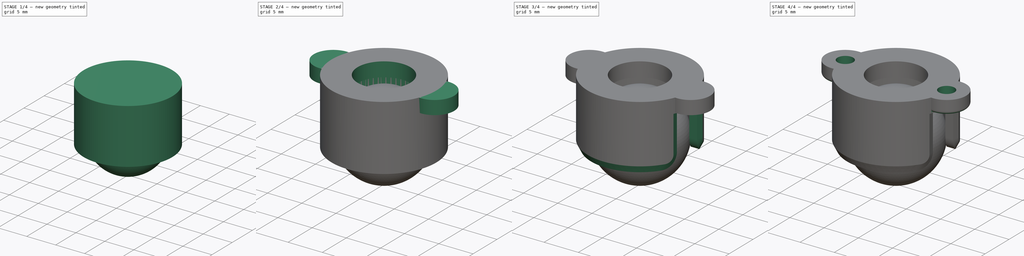
[diagram: build sequence overview — one tinted view per stage of 4, left to right]
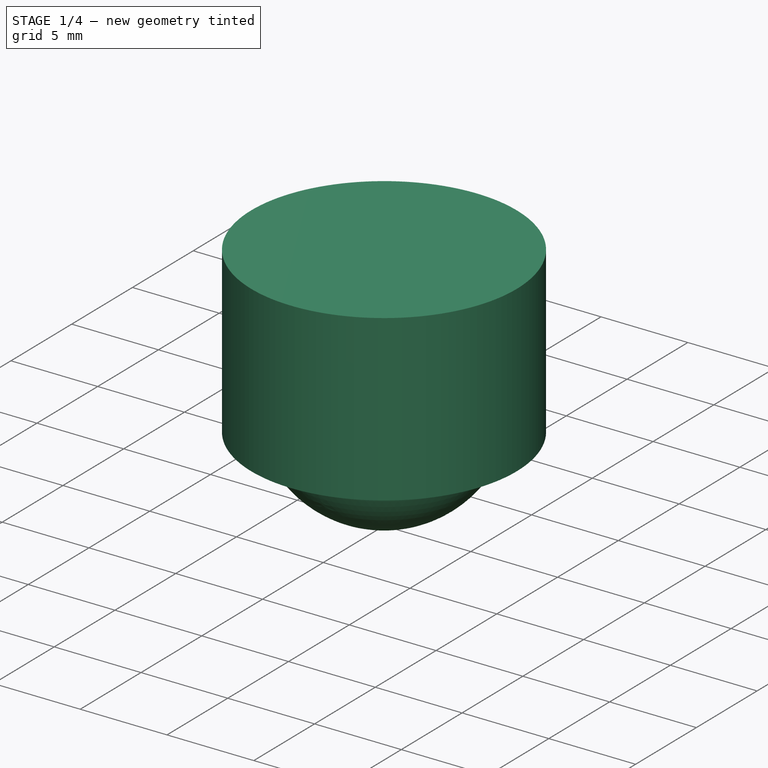
[diagram: stage 1 of 4 — iso view after this stage's code; geometry added in this stage tinted green]
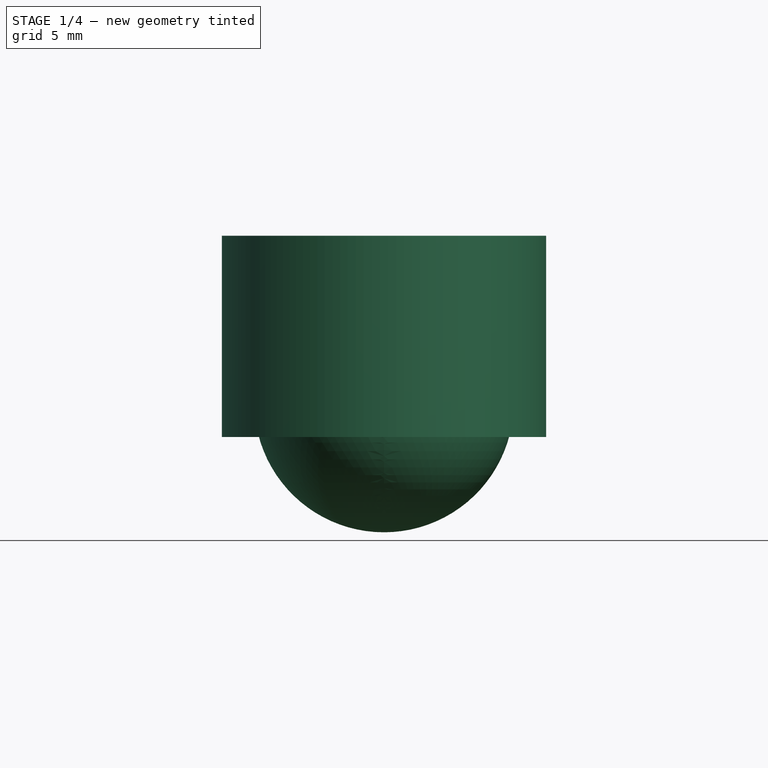
[diagram: stage 1 of 4 — front view after this stage's code; geometry added in this stage tinted green]
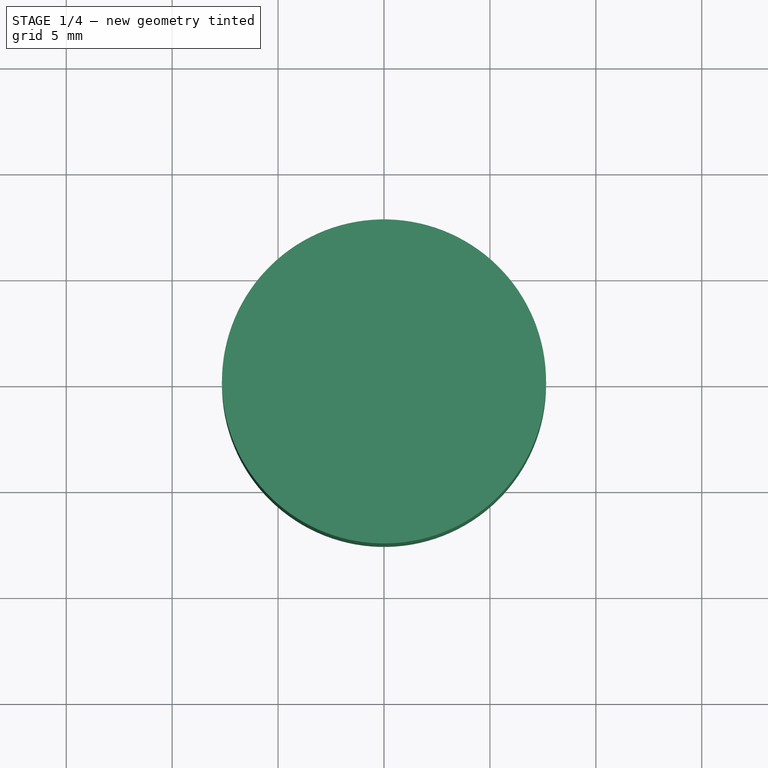
[diagram: stage 1 of 4 — top view after this stage's code; geometry added in this stage tinted green]
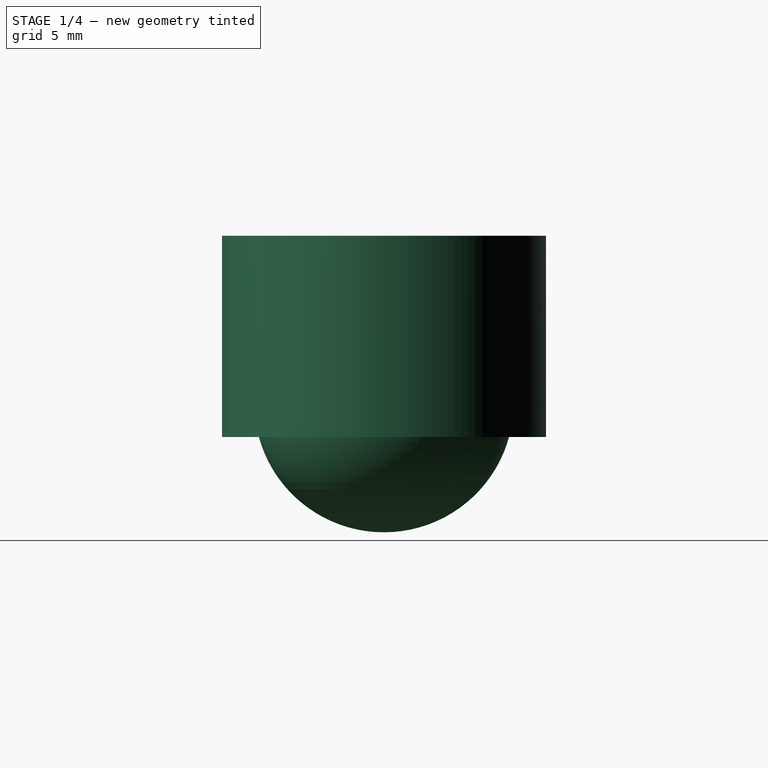
[diagram: stage 1 of 4 — right view after this stage's code; geometry added in this stage tinted green]
FCSTD DOCUMENT  (FreeCAD 0.19R24276 (Git))
Label: Std_PBallCasterV2
License: All rights reserved
LicenseURL: http://en.wikipedia.org/wiki/All_rights_reserved
objects: Sketcher::SketchObject×7, PartDesign::Pocket×4, PartDesign::Pad×2, PartDesign::Fillet×2, PartDesign::Body×2, PartDesign::Chamfer×1, PartDesign::Revolution×1, App::Part×1
note: 29 computed .brp shape members not serialized (recipe doc carries the construction recipe); baked Part::Feature solids carry a one-line shape summary decoded from their .brp

FEATURE [Sketcher::SketchObject] Sketch
  FullyConstrained = true
  MapMode = 5
  Support = -> [XY_Plane001]
  sketch-geometry (1):
    g0: Circle CenterX=0 CenterY=0 CenterZ=0 NormalX=0 NormalY=0 NormalZ=1 AngleXU=0 Radius=7.65
  constraints (2):
    c: Coincident(g0,g-1)
    c: Diameter(g0) = 15.3
FEATURE [PartDesign::Pad] Pad
  Direction = (1,1,1)
  Length = 9.5
  Length2 = 100
  Profile = -> Sketch
  Reversed = true
  Type = 0
FEATURE [PartDesign::Body] Body  label="Shell"
  Group = -> [Sketch,Pad,Sketch001,Pocket,Sketch002,Pocket001,Sketch003,Pad001,Sketch004,Pocket002,Fillet,Chamfer,Sketch005,Pocket003,Fillet001]
  Origin = -> Origin001
  Tip = -> Fillet001
FEATURE [Sketcher::SketchObject] Sketch006
  FullyConstrained = true
  MapMode = 5
  Placement = pos=(0,0,0) rot=(0.57735,0.57735,0.57735;2.0944rad)
  Support = -> [YZ_Plane002]
  sketch-geometry (2):
    g0: ArcOfCircle CenterX=0 CenterY=-7.875 CenterZ=0 NormalX=0 NormalY=0 NormalZ=1 AngleXU=0 Radius=6.125 StartAngle=1.5708 EndAngle=4.71239
    g1: LineSegment StartX=-4.45e-14 StartY=-1.75 StartZ=0 EndX=-4.45e-14 EndY=-14 EndZ=0
  constraints (7):
    c: PointOnObject(g0,g-2)
    c: PointOnObject(g0,g-2)
    c: Coincident(g1,g0)
    c: Coincident(g1,g0)
    c: Vertical(g1)
    c: Diameter(g0) = 12.25
    c: DistanceY(g0,g-1) = 14
FEATURE [PartDesign::Revolution] Revolution
  Angle = 360
  Axis = (-2e-16,3e-16,1)
  Base = (0,0,0)
  Placement = pos=(0,0,0) rot=(0.57735,0.57735,0.57735;2.0944rad)
  Profile = -> Sketch006
  ReferenceAxis = -> Sketch006 [V_Axis]
FEATURE [PartDesign::Body] Body001  label="Ball"
  Group = -> [Sketch006,Revolution]
  Origin = -> Origin002
  Tip = -> Revolution
FEATURE [App::Part] Part  label="BallCaster"
  Group = -> [Body,Body001]
  Origin = -> Origin
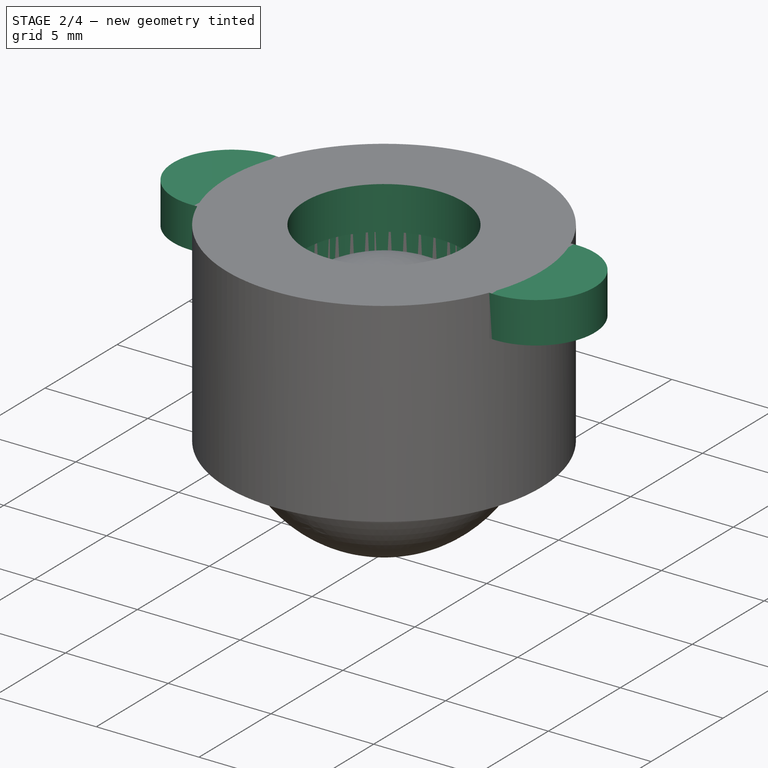
[diagram: stage 2 of 4 — iso view after this stage's code; geometry added in this stage tinted green]
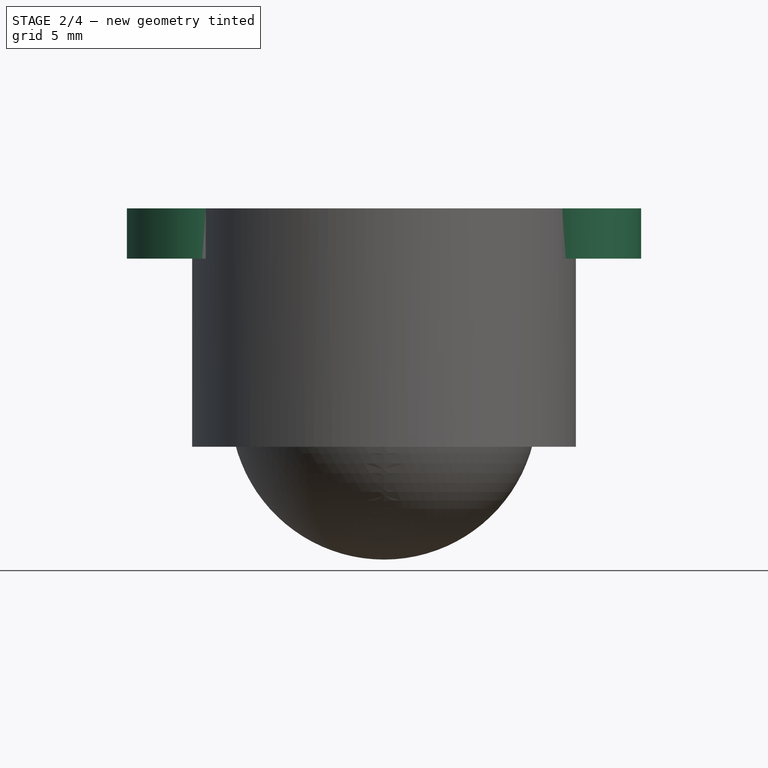
[diagram: stage 2 of 4 — front view after this stage's code; geometry added in this stage tinted green]
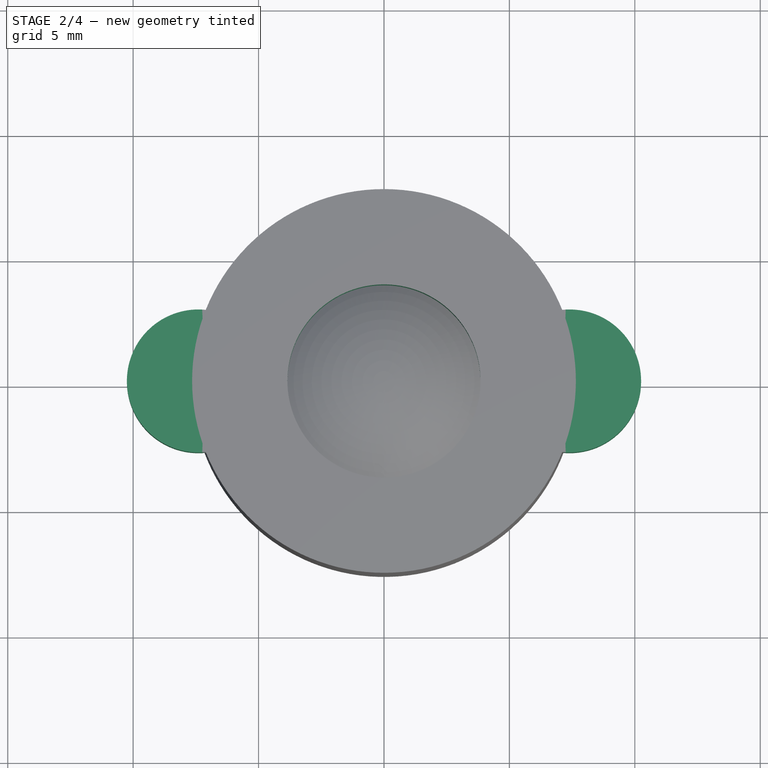
[diagram: stage 2 of 4 — top view after this stage's code; geometry added in this stage tinted green]
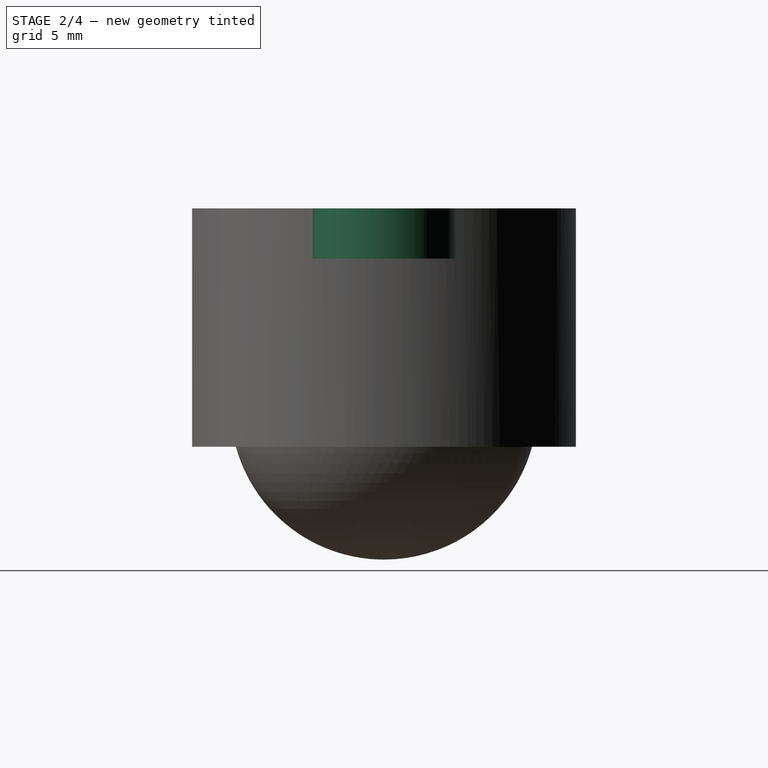
[diagram: stage 2 of 4 — right view after this stage's code; geometry added in this stage tinted green]
FEATURE [Sketcher::SketchObject] Sketch001
  FullyConstrained = true
  MapMode = 5
  Placement = pos=(0,0,-9.5) rot=(1,0,0;3.14159rad)
  Support = -> [Pad]
  sketch-geometry (1):
    g0: Circle CenterX=0 CenterY=0 CenterZ=0 NormalX=0 NormalY=0 NormalZ=1 AngleXU=0 Radius=6.1
  constraints (2):
    c: Coincident(g0,g-1)
    c: Diameter(g0) = 12.2
FEATURE [PartDesign::Pocket] Pocket
  BaseFeature = -> Pad
  Length = 7.4
  Length2 = 100
  Profile = -> Sketch001
  Type = 0
FEATURE [Sketcher::SketchObject] Sketch002
  FullyConstrained = true
  MapMode = 5
  Support = -> [Pocket]
  sketch-geometry (1):
    g0: Circle CenterX=0 CenterY=0 CenterZ=0 NormalX=0 NormalY=0 NormalZ=1 AngleXU=0 Radius=3.85
  constraints (2):
    c: Coincident(g0,g-1)
    c: Diameter(g0) = 7.7
FEATURE [PartDesign::Pocket] Pocket001
  BaseFeature = -> Pocket
  Length = 5
  Length2 = 100
  Profile = -> Sketch002
  Type = 0
FEATURE [Sketcher::SketchObject] Sketch003
  FullyConstrained = true
  MapMode = 5
  Support = -> [XY_Plane001]
  sketch-geometry (4):
    g0: Circle CenterX=-7.4 CenterY=0 CenterZ=0 NormalX=0 NormalY=0 NormalZ=1 AngleXU=0 Radius=2.85
    g1: Circle CenterX=7.4 CenterY=0 CenterZ=0 NormalX=0 NormalY=0 NormalZ=1 AngleXU=0 Radius=2.85
    g2: LineSegment StartX=0 StartY=0 StartZ=0 EndX=-7.4 EndY=0 EndZ=0
    g3: LineSegment StartX=0 StartY=0 StartZ=0 EndX=7.4 EndY=0 EndZ=0
  constraints (10):
    c: Coincident(g2,g-1)
    c: PointOnObject(g2,g-1)
    c: Coincident(g3,g-1)
    c: PointOnObject(g3,g-1)
    c: Equal(g3,g2)
    c: Equal(g0,g1)
    c: Coincident(g0,g2)
    c: Coincident(g1,g3)
    c: Radius(g0) = 2.85
    c: DistanceX(g0,g1) = 14.8
FEATURE [PartDesign::Pad] Pad001
  BaseFeature = -> Pocket001
  Direction = (1,1,1)
  Length = 2
  Length2 = 100
  Profile = -> Sketch003
  Reversed = true
  Type = 0
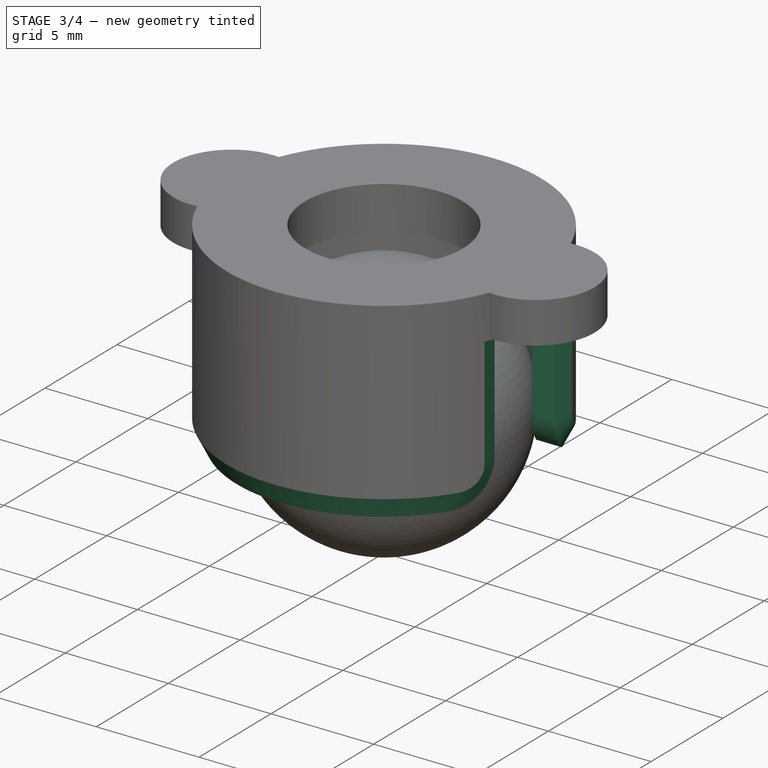
[diagram: stage 3 of 4 — iso view after this stage's code; geometry added in this stage tinted green]
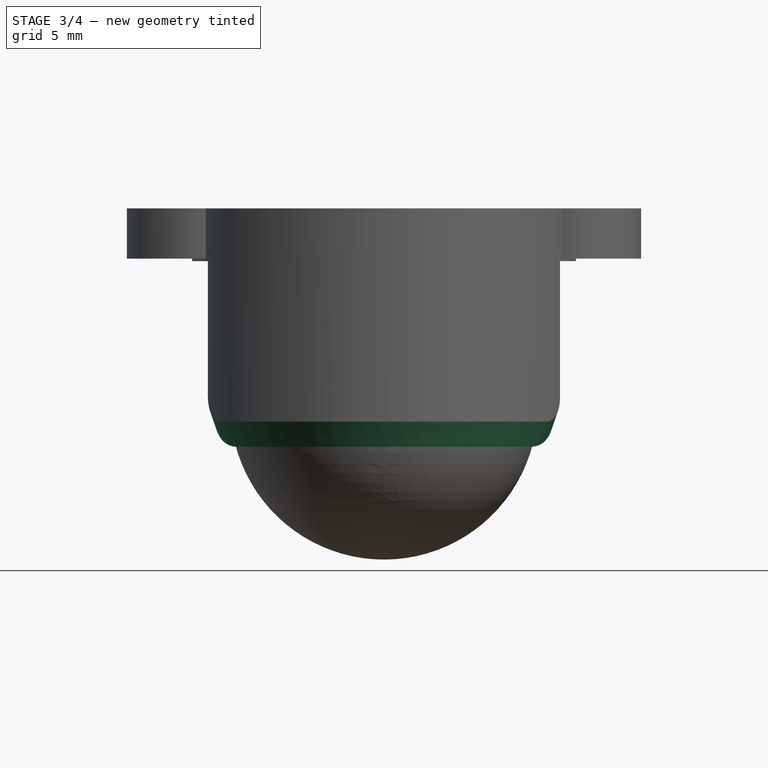
[diagram: stage 3 of 4 — front view after this stage's code; geometry added in this stage tinted green]
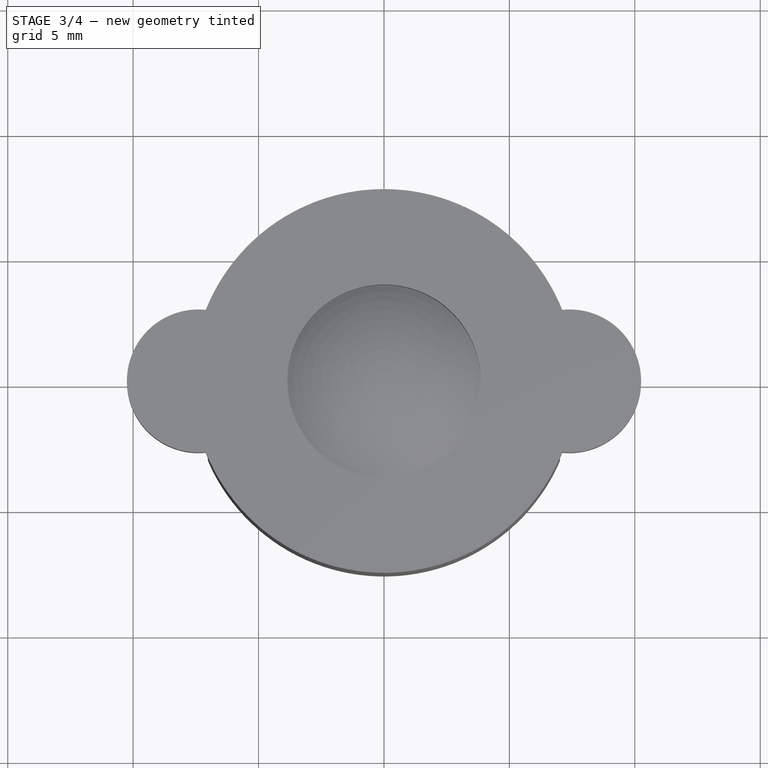
[diagram: stage 3 of 4 — top view after this stage's code; geometry added in this stage tinted green]
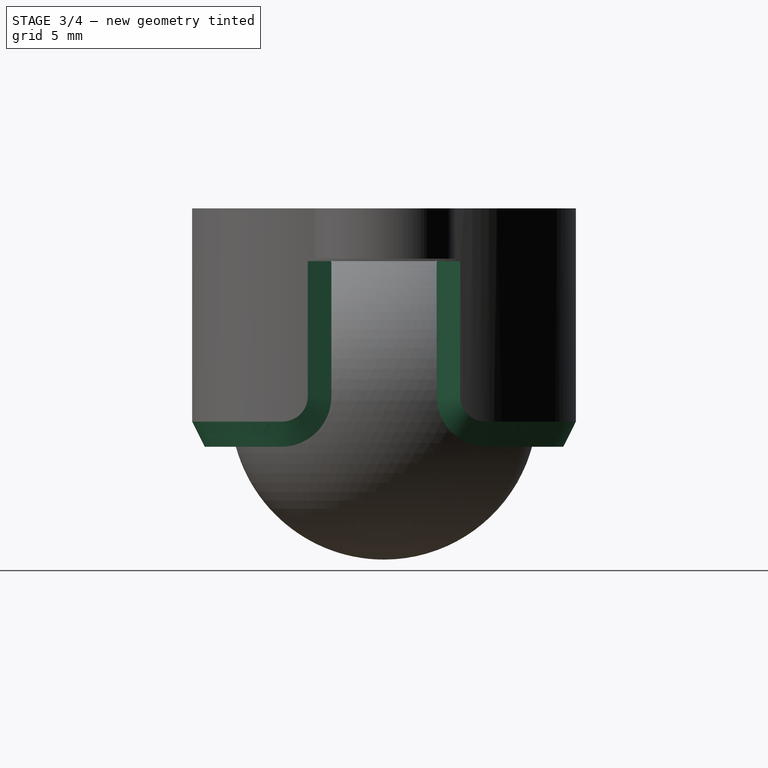
[diagram: stage 3 of 4 — right view after this stage's code; geometry added in this stage tinted green]
FEATURE [Sketcher::SketchObject] Sketch004
  FullyConstrained = true
  MapMode = 5
  Placement = pos=(0,0,-9.5) rot=(1,0,0;3.14159rad)
  Support = -> [Pad001]
  sketch-geometry (6):
    g0: LineSegment StartX=0 StartY=0 StartZ=0 EndX=0 EndY=2.1 EndZ=0
    g1: LineSegment StartX=0 StartY=0 StartZ=0 EndX=12.5 EndY=0 EndZ=0
    g2: LineSegment StartX=-12.5 StartY=2.1 StartZ=0 EndX=12.5 EndY=2.1 EndZ=0
    g3: LineSegment StartX=12.5 StartY=2.1 StartZ=0 EndX=12.5 EndY=-2.1 EndZ=0
    g4: LineSegment StartX=12.5 StartY=-2.1 StartZ=0 EndX=-12.5 EndY=-2.1 EndZ=0
    g5: LineSegment StartX=-12.5 StartY=-2.1 StartZ=0 EndX=-12.5 EndY=2.1 EndZ=0
  constraints (16):
    c: Coincident(g0,g-1)
    c: PointOnObject(g0,g-2)
    c: Coincident(g1,g-1)
    c: PointOnObject(g1,g-1)
    c: Coincident(g2,g3)
    c: Coincident(g3,g4)
    c: Coincident(g4,g5)
    c: Coincident(g5,g2)
    c: Horizontal(g2)
    c: Horizontal(g4)
    c: Vertical(g3)
    c: Vertical(g5)
    c: Symmetric(g2,g2,g0)
    c: Symmetric(g2,g3,g1)
    c: DistanceX(g2,g2) = 25
    c: DistanceY(g3,g2) = 4.2
FEATURE [PartDesign::Pocket] Pocket002
  BaseFeature = -> Pad001
  Length = 7.4
  Length2 = 100
  Profile = -> Sketch004
  Type = 0
FEATURE [PartDesign::Fillet] Fillet
  Base = -> Pocket002 [Edge50,Edge44,Edge52,Edge42]
  BaseFeature = -> Pocket002
  Radius = 2
  SupportTransform = false
FEATURE [PartDesign::Chamfer] Chamfer
  Angle = 45
  Base = -> Fillet [Edge4,Edge16]
  BaseFeature = -> Fillet
  ChamferType = 1
  FlipDirection = false
  Size = 1
  Size2 = 0.5
  SupportTransform = false
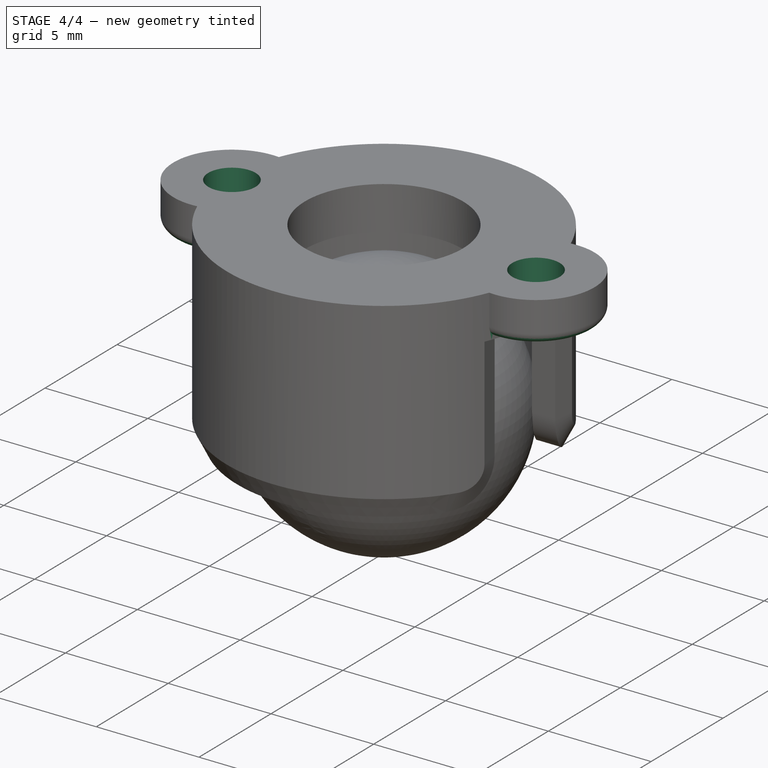
[diagram: stage 4 of 4 — iso view after this stage's code; geometry added in this stage tinted green]
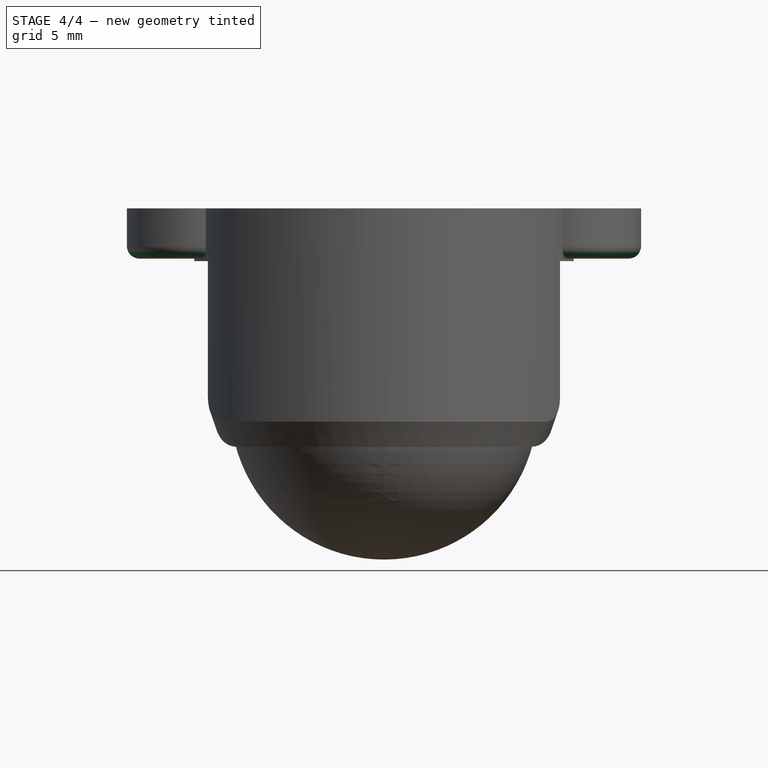
[diagram: stage 4 of 4 — front view after this stage's code; geometry added in this stage tinted green]
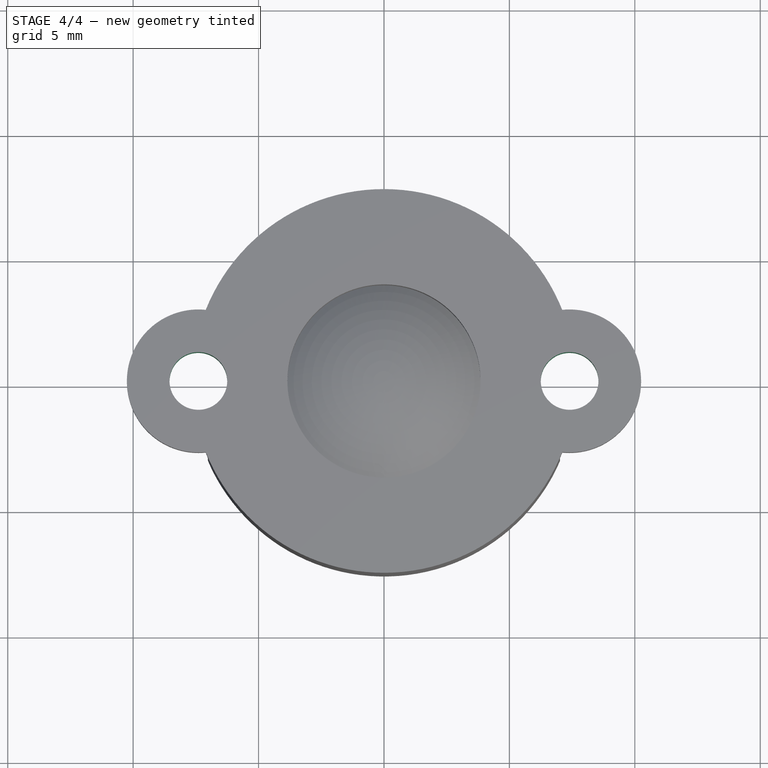
[diagram: stage 4 of 4 — top view after this stage's code; geometry added in this stage tinted green]
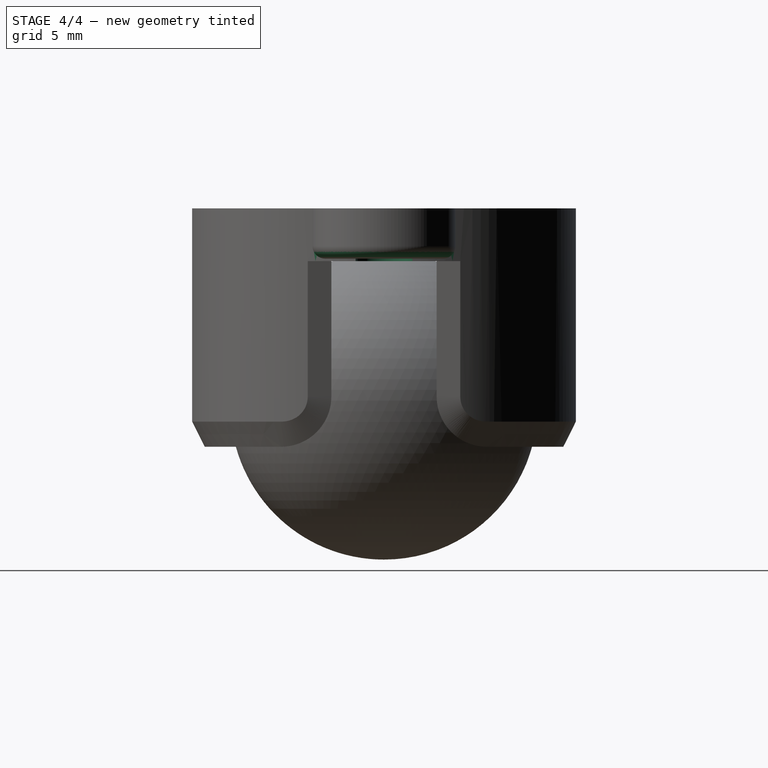
[diagram: stage 4 of 4 — right view after this stage's code; geometry added in this stage tinted green]
FEATURE [Sketcher::SketchObject] Sketch005
  FullyConstrained = true
  MapMode = 5
  Support = -> [Chamfer]
  sketch-geometry (4):
    g0: LineSegment StartX=0 StartY=0 StartZ=0 EndX=-7.4 EndY=0 EndZ=0
    g1: LineSegment StartX=0 StartY=0 StartZ=0 EndX=7.4 EndY=0 EndZ=0
    g2: Circle CenterX=-7.4 CenterY=0 CenterZ=0 NormalX=0 NormalY=0 NormalZ=1 AngleXU=0 Radius=1.15
    g3: Circle CenterX=7.4 CenterY=0 CenterZ=0 NormalX=0 NormalY=0 NormalZ=1 AngleXU=0 Radius=1.15
  constraints (10):
    c: Coincident(g0,g-1)
    c: PointOnObject(g0,g-1)
    c: Coincident(g1,g-1)
    c: PointOnObject(g1,g-1)
    c: Equal(g0,g1)
    c: Coincident(g2,g0)
    c: Coincident(g3,g1)
    c: Equal(g2,g3)
    c: Diameter(g2) = 2.3
    c: DistanceX(g2,g3) = 14.8
FEATURE [PartDesign::Pocket] Pocket003
  BaseFeature = -> Chamfer
  Length = 5
  Length2 = 100
  Profile = -> Sketch005
  Type = 0
FEATURE [PartDesign::Fillet] Fillet001
  Base = -> Pocket003 [Edge33,Edge47,Edge42]
  BaseFeature = -> Pocket003
  Radius = 0.5
  SupportTransform = false
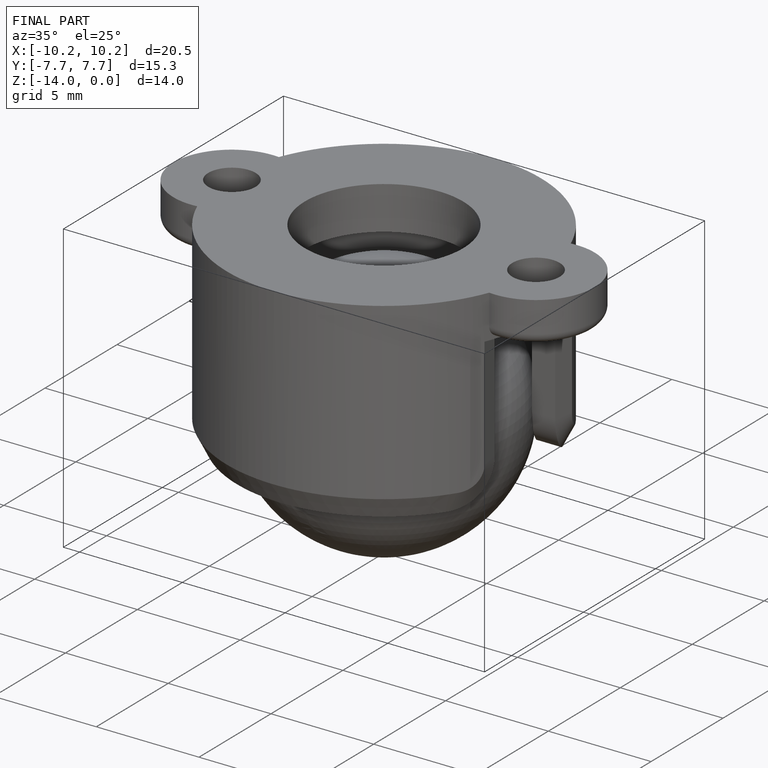
[diagram: finished part — iso view with bounding-box wireframe]
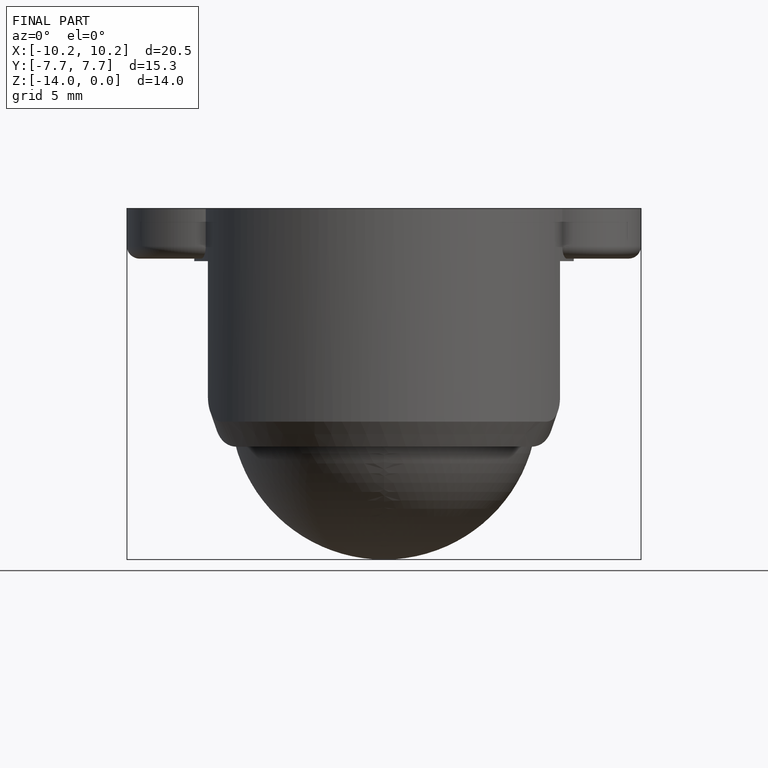
[diagram: finished part — front view with bounding-box wireframe]
